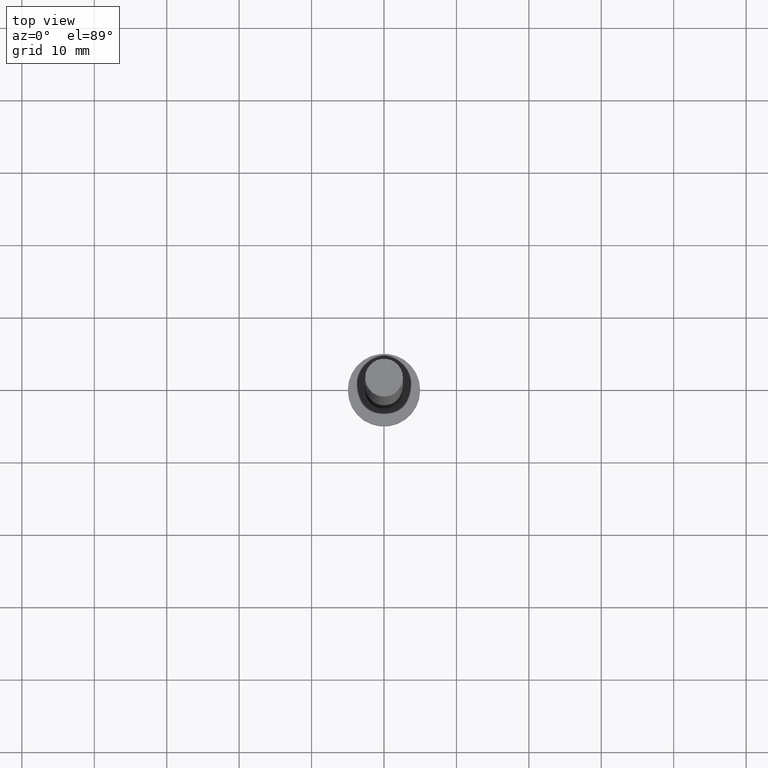
[diagram: clean part render]
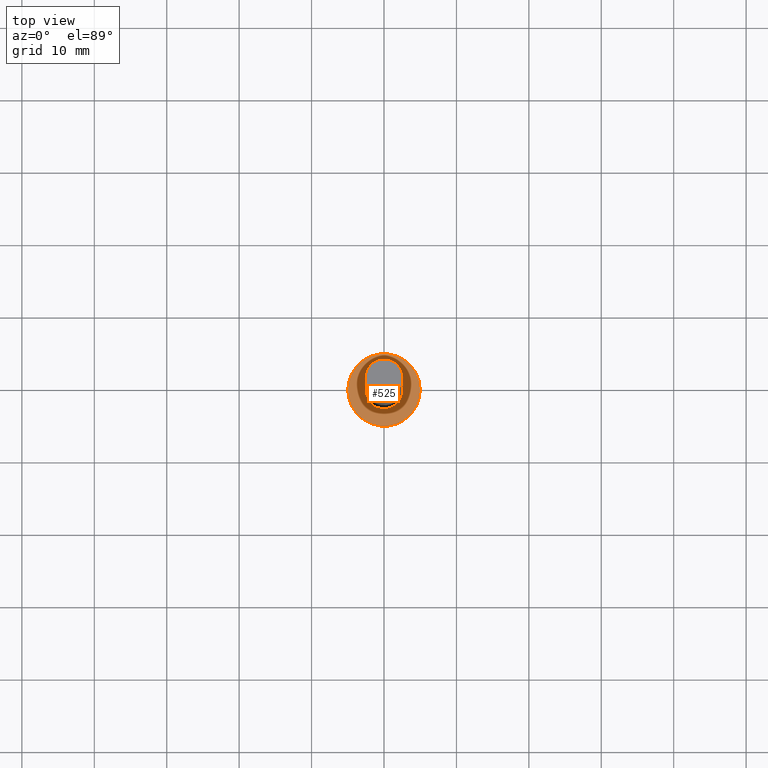
[diagram: same view with one face highlighted and labeled with its STEP entity id]
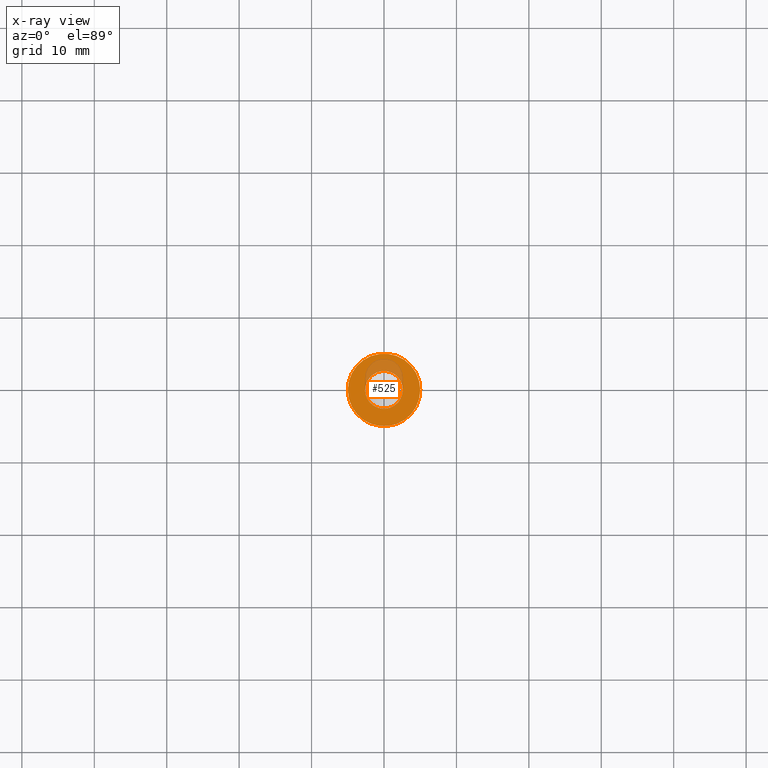
[diagram: x-ray of the same camera — body ghosted, the highlighted face saturated]
A machine part, top view. The second image highlights one B-rep face of the part: STEP entity #525.
The next image is the same camera in x-ray: the body ghosted, the highlighted face saturated — about 16% of this face is hidden behind the body in this view.
In plain terms, the highlighted planar face has unit normal (0, 0, 1).
Its self-contained STEP definition (entity closure, byte-faithful):
#1 = AXIS2_PLACEMENT_3D ( 'NONE', #634, #388, #522 ) ;
#76 = DIRECTION ( 'NONE',  ( 1.000000000000000000, 0.000000000000000000, 0.000000000000000000 ) ) ;
#82 = EDGE_LOOP ( 'NONE', ( #782, #1179 ) ) ;
#110 = AXIS2_PLACEMENT_3D ( 'NONE', #1447, #428, #880 ) ;
#124 = EDGE_LOOP ( 'NONE', ( #1089, #364 ) ) ;
#141 = CIRCLE ( 'NONE', #978, 5.000000000000000000 ) ;
#160 = FACE_OUTER_BOUND ( 'NONE', #124, .T. ) ;
#175 = PLANE ( 'NONE',  #1 ) ;
#176 = AXIS2_PLACEMENT_3D ( 'NONE', #1250, #212, #76 ) ;
#179 = CARTESIAN_POINT ( 'NONE',  ( 0.000000000000000000, 0.000000000000000000, 3.000000000000000000 ) ) ;
#187 = DIRECTION ( 'NONE',  ( 0.000000000000000000, 0.000000000000000000, 1.000000000000000000 ) ) ;
#212 = DIRECTION ( 'NONE',  ( 0.000000000000000000, 0.000000000000000000, 1.000000000000000000 ) ) ;
#229 = CIRCLE ( 'NONE', #110, 5.000000000000000000 ) ;
#269 = DIRECTION ( 'NONE',  ( 1.000000000000000000, 0.000000000000000000, 0.000000000000000000 ) ) ;
#364 = ORIENTED_EDGE ( 'NONE', *, *, #372, .T. ) ;
#372 = EDGE_CURVE ( 'NONE', #994, #1208, #141, .T. ) ;
#388 = DIRECTION ( 'NONE',  ( 0.000000000000000000, 0.000000000000000000, 1.000000000000000000 ) ) ;
#394 = AXIS2_PLACEMENT_3D ( 'NONE', #1393, #917, #269 ) ;
#428 = DIRECTION ( 'NONE',  ( 0.000000000000000000, 0.000000000000000000, 1.000000000000000000 ) ) ;
#522 = DIRECTION ( 'NONE',  ( 1.000000000000000000, 0.000000000000000000, -0.000000000000000000 ) ) ;
#525 = ADVANCED_FACE ( 'NONE', ( #1211, #160 ), #175, .T. ) ;
#534 = CARTESIAN_POINT ( 'NONE',  ( 5.000000000000000000, 6.123233995736766282E-16, 3.000000000000000000 ) ) ;
#560 = DIRECTION ( 'NONE',  ( 1.000000000000000000, 0.000000000000000000, 0.000000000000000000 ) ) ;
#612 = EDGE_CURVE ( 'NONE', #697, #795, #1465, .T. ) ;
#634 = CARTESIAN_POINT ( 'NONE',  ( 0.000000000000000000, 0.000000000000000000, 3.000000000000000000 ) ) ;
#697 = VERTEX_POINT ( 'NONE', #1359 ) ;
#782 = ORIENTED_EDGE ( 'NONE', *, *, #1451, .F. ) ;
#795 = VERTEX_POINT ( 'NONE', #1292 ) ;
#880 = DIRECTION ( 'NONE',  ( 1.000000000000000000, 0.000000000000000000, 0.000000000000000000 ) ) ;
#913 = CARTESIAN_POINT ( 'NONE',  ( -5.000000000000000000, 0.000000000000000000, 3.000000000000000000 ) ) ;
#917 = DIRECTION ( 'NONE',  ( 0.000000000000000000, 0.000000000000000000, 1.000000000000000000 ) ) ;
#978 = AXIS2_PLACEMENT_3D ( 'NONE', #179, #187, #560 ) ;
#994 = VERTEX_POINT ( 'NONE', #534 ) ;
#1009 = EDGE_CURVE ( 'NONE', #1208, #994, #229, .T. ) ;
#1089 = ORIENTED_EDGE ( 'NONE', *, *, #1009, .T. ) ;
#1160 = CIRCLE ( 'NONE', #176, 2.600000000000000089 ) ;
#1179 = ORIENTED_EDGE ( 'NONE', *, *, #612, .F. ) ;
#1208 = VERTEX_POINT ( 'NONE', #913 ) ;
#1211 = FACE_BOUND ( 'NONE', #82, .T. ) ;
#1250 = CARTESIAN_POINT ( 'NONE',  ( 0.000000000000000000, 0.000000000000000000, 3.000000000000000000 ) ) ;
#1292 = CARTESIAN_POINT ( 'NONE',  ( -2.600000000000000089, 0.000000000000000000, 3.000000000000000000 ) ) ;
#1359 = CARTESIAN_POINT ( 'NONE',  ( 2.600000000000000089, 3.184081677783117698E-16, 3.000000000000000000 ) ) ;
#1393 = CARTESIAN_POINT ( 'NONE',  ( 0.000000000000000000, 0.000000000000000000, 3.000000000000000000 ) ) ;
#1447 = CARTESIAN_POINT ( 'NONE',  ( 0.000000000000000000, 0.000000000000000000, 3.000000000000000000 ) ) ;
#1451 = EDGE_CURVE ( 'NONE', #795, #697, #1160, .T. ) ;
#1465 = CIRCLE ( 'NONE', #394, 2.600000000000000089 ) ;